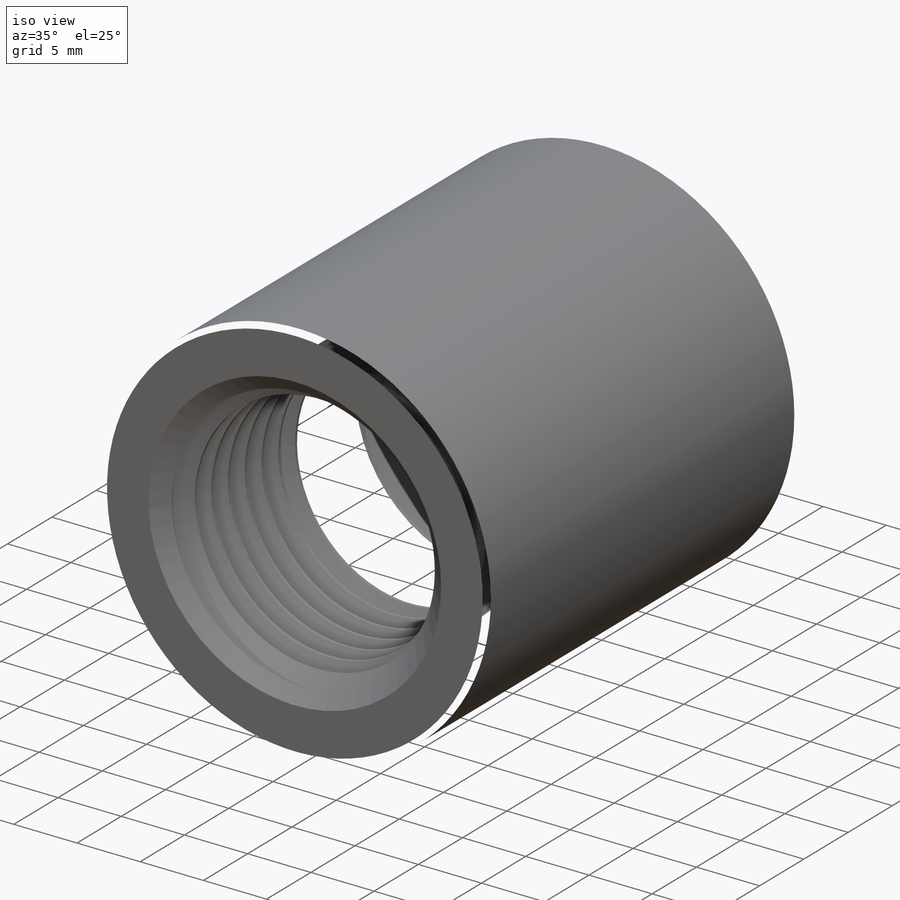
[diagram: iso view]
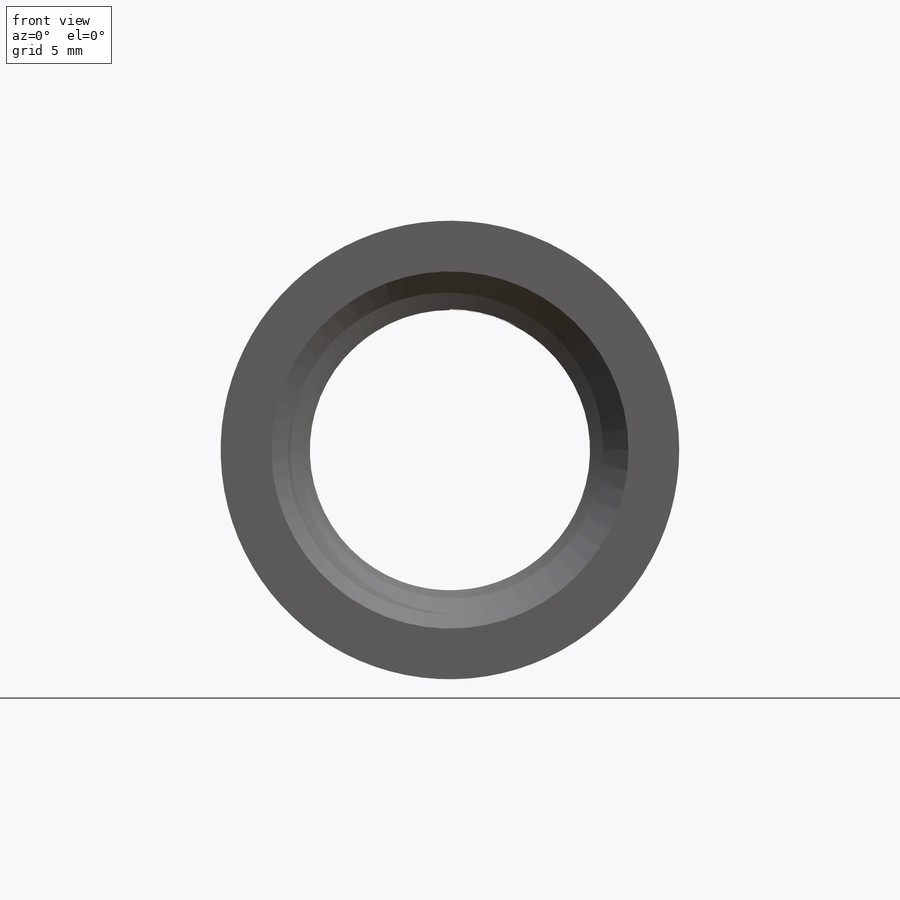
[diagram: front view]
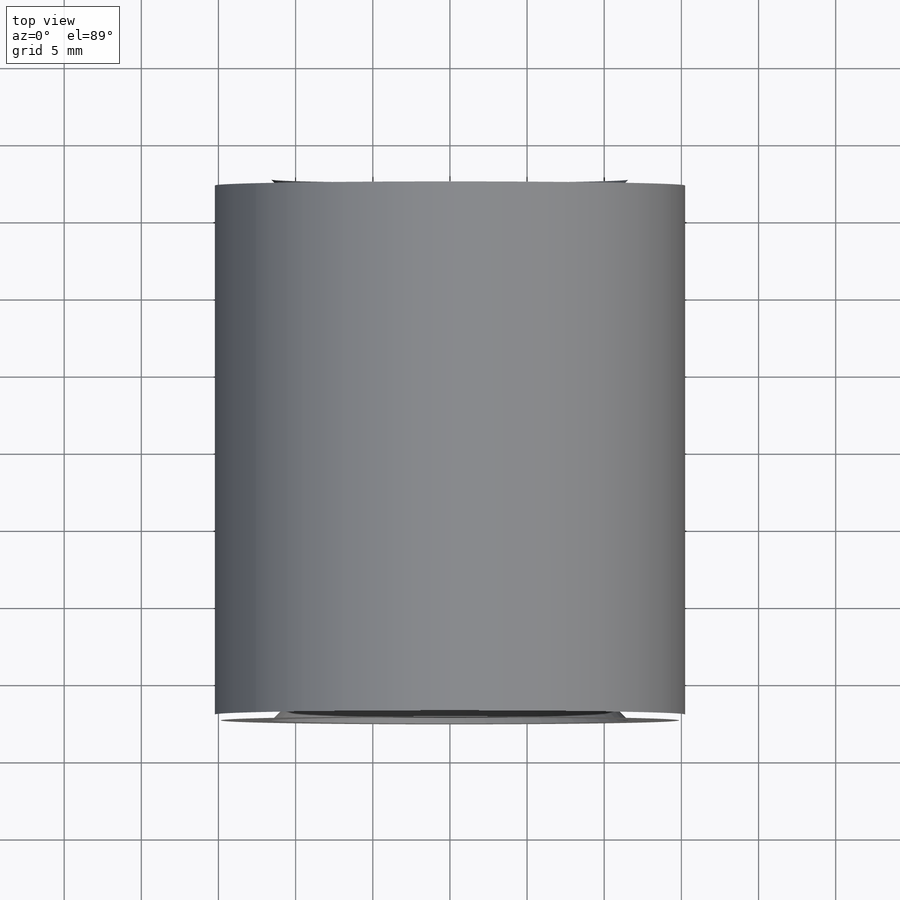
[diagram: top view]
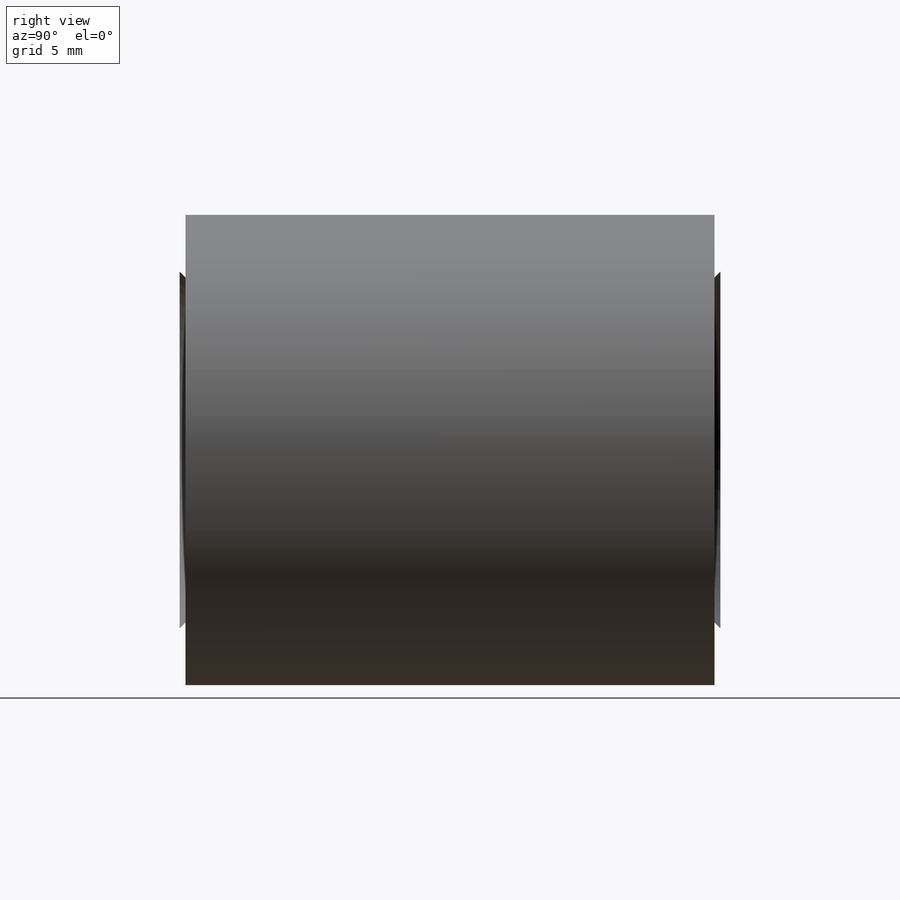
[diagram: right view]
SOLIDWORKS PART (.sldprt)
format: sldprt  version: not decoded by parser v0  size: 1,028,096 bytes
history: native  units: mm
features: sketch x7, cut_extrude x4, material x1, extrude x1, helix x1, sweep x1, pattern_circular x1, fillet x1 (+12 scaffold rows collapsed)
feature tree (29):
  scaffold x12  (default folders/planes/origin — collapsed)
  material  "Material <not specified>"
  sketch  "Sketch1"  dims[A=30.48mm]
  extrude  "Extrude1"  Depth=35.052mm B=35.052mm
  sketch  "Sketch2"  dims[pipe ID=21.336mm]
  cut_extrude  "Cut-Extrude1"  Depth=13.55598mm E=13.55598mm
  sketch  "Sketch3"
  helix  "Helix/Spiral1"  Pitch=15.370266mm pitch=1.814286mm
  sketch  "Sketch5"  dims[c1.D1=~0.907143mm c1.D2=~4.249207mm c2.D2=45.0deg]
  sketch  "Sketch4"  dims[c1.D1=~6.892111mm c2.D1=5.0deg c2.D2=~4.074875mm c3.D2=60.0deg c3.D3=~0.226786mm c3.D4=~0.907143mm]
  sweep  "Sweep1"
  sketch  "Sketch6"  dims[D1=0.0mm]
  cut_extrude  "Cut-Extrude2"  [1 undecoded]
  cut_extrude  "Cut-Extrude3"  Depth=3.175mm
  pattern_circular  "CirPattern1"  Count=2 Angle=360deg
  sketch  "Sketch7"  dims[D1=0.0mm D2=0.0mm]
  cut_extrude  "Cut-Extrude4"  [1 undecoded]
  fillet  "Fillet1"  Radius=0.381mm
decode coverage: 12 of 16 modeling features carry decoded parameters
note: ~ marks probable driven/reference dimensions
note: 2 parameter values undecoded
note: suppression state not decoded; provenance and decode notes live in map.json
